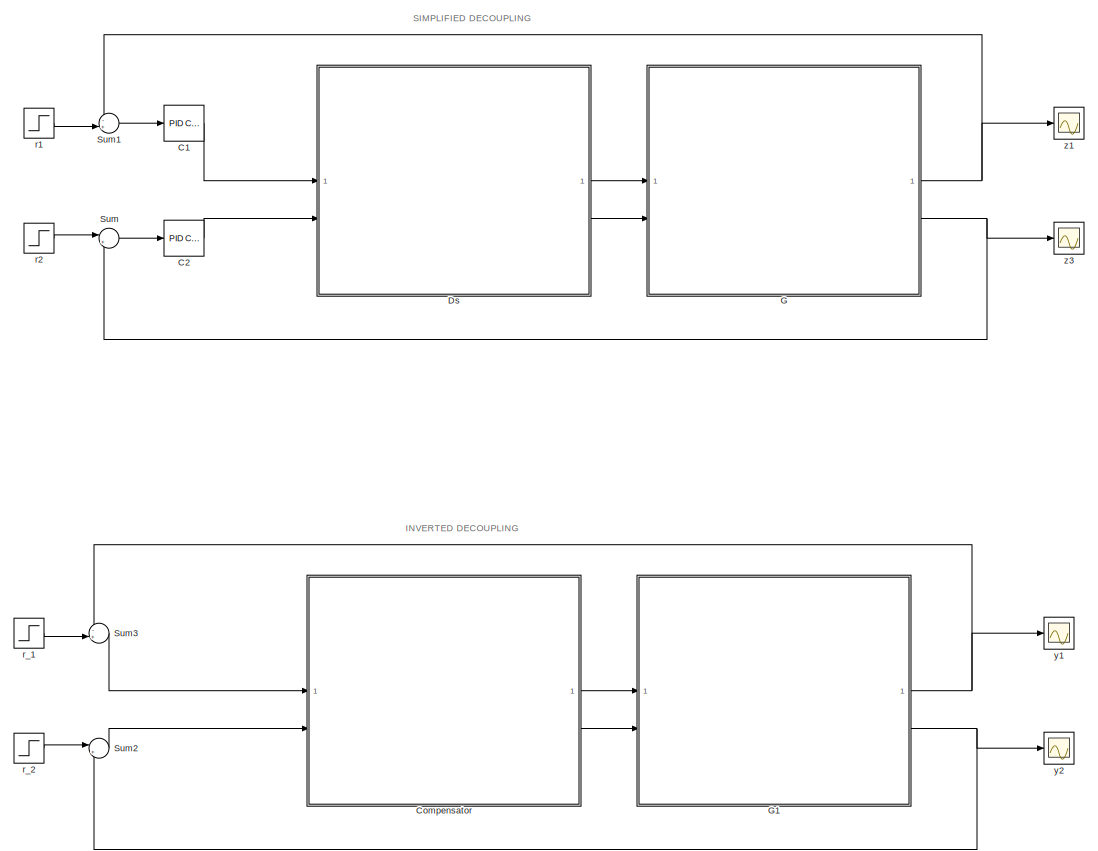
[diagram: root canvas - part 1/2, full width, top band]
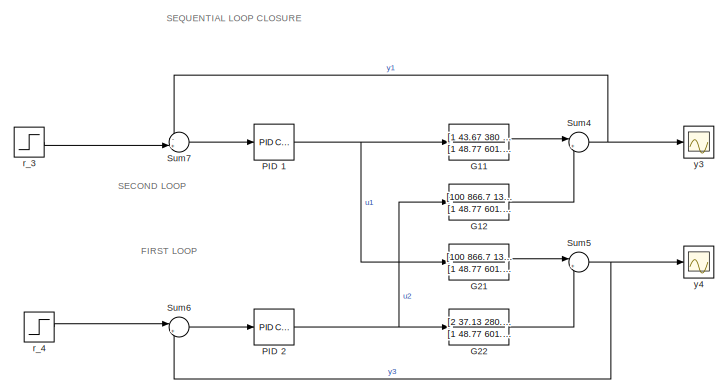
[diagram: root canvas - part 2/2, bottom center region]
MODEL slx_95e938a37284
KIND model
CONFIG AbsTol = auto
CONFIG EnableMultiTasking = off
CONFIG FixedStep = auto
CONFIG MaxStep = auto
CONFIG MinStep = auto
CONFIG RelTol = 1e-3
CONFIG SampleTimeConstraint = Unconstrained
CONFIG SolverName = VariableStepAuto
CONFIG StartTime = 0.0
CONFIG StopTime = 10.0
BLOCK [Reference] C1  REF=slpidlib/PID Controller
  LibrarySourceBlock = simulink/Continuous/PID Controller
  SourceBlock = slpidlib/PID Controller
  SourceType = PID 1dof
BLOCK [Reference] C2  REF=slpidlib/PID Controller
  LibrarySourceBlock = simulink/Continuous/PID Controller
  SourceBlock = slpidlib/PID Controller
  SourceType = PID 1dof
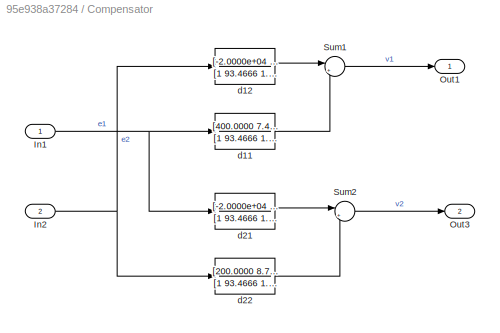
BLOCK [SubSystem] Compensator
BLOCK [Inport] Compensator/In1
  IconDisplay = Signal name
BLOCK [Inport] Compensator/In2
  IconDisplay = Signal name
  Port = 2
BLOCK [Outport] Compensator/Out1
  IconDisplay = Signal name
BLOCK [Outport] Compensator/Out3
  IconDisplay = Signal name
  Port = 2
BLOCK [Sum] Compensator/Sum1
  Inputs = |++
BLOCK [Sum] Compensator/Sum2
  Inputs = |++
BLOCK [TransferFcn] Compensator/d11
  Denominator = [1 93.4666 1.1507e+03 5.8666e+03 0]
  Numerator = [400.0000 7.4266e+03 5.6138e+04 2.0373e+05 4.1333e+05]
BLOCK [TransferFcn] Compensator/d12
  Denominator = [1 93.4666 1.1507e+03 5.8666e+03 0]
  Numerator = [-2.0000e+04 -1.7333e+05 -2.6667e+05]
BLOCK [TransferFcn] Compensator/d21
  Denominator = [1 93.4666 1.1507e+03 5.8666e+03 0]
  Numerator = [-2.0000e+04 -1.7333e+05 -2.6667e+05]
BLOCK [TransferFcn] Compensator/d22
  Denominator = [1 93.4666 1.1507e+03 5.8666e+03 0]
  Numerator = [200.0000 8.7333e+03 7.6005e+04 1.8160e+05 2.6667e+05]
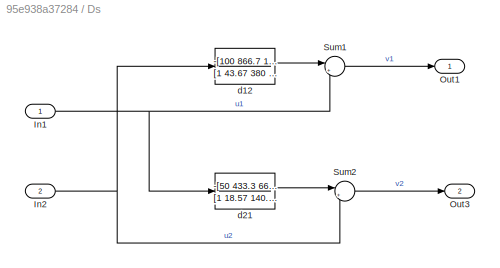
BLOCK [SubSystem] Ds
BLOCK [Inport] Ds/In1
  IconDisplay = Signal name
BLOCK [Inport] Ds/In2
  IconDisplay = Signal name
  Port = 2
BLOCK [Outport] Ds/Out1
  IconDisplay = Signal name
BLOCK [Outport] Ds/Out3
  IconDisplay = Signal name
  Port = 2
BLOCK [Sum] Ds/Sum1
  Inputs = |++
BLOCK [Sum] Ds/Sum2
  Inputs = |++
BLOCK [TransferFcn] Ds/d12
  Denominator = [1 43.67 380 908 1333]
  Numerator = -[100 866.7 1333]
BLOCK [TransferFcn] Ds/d21
  Denominator = [1 18.57 140.3 509.3 1033]
  Numerator = -[50 433.3 666.7]
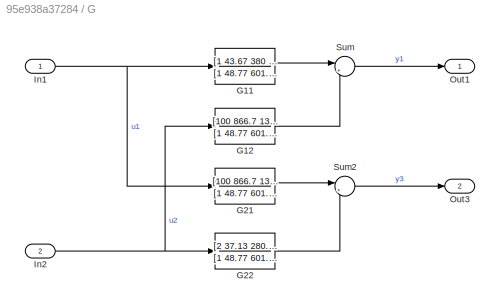
BLOCK [SubSystem] G
BLOCK [TransferFcn] G/G11
  Denominator = [1 48.77 601.1 2931 6251 5073 6667]
  Numerator = [1 43.67 380 908 1333]
BLOCK [TransferFcn] G/G12
  Denominator = [1 48.77 601.1 2931 6251 5073 6667]
  Numerator = [100 866.7 1333]
BLOCK [TransferFcn] G/G21
  Denominator = [1 48.77 601.1 2931 6251 5073 6667]
  Numerator = [100 866.7 1333]
BLOCK [TransferFcn] G/G22
  Denominator = [1 48.77 601.1 2931 6251 5073 6667]
  Numerator = [2 37.13 280.7 1019 2067]
BLOCK [Inport] G/In1
  IconDisplay = Signal name
BLOCK [Inport] G/In2
  IconDisplay = Signal name
  Port = 2
BLOCK [Outport] G/Out1
  IconDisplay = Signal name
BLOCK [Outport] G/Out3
  IconDisplay = Signal name
  Port = 2
BLOCK [Sum] G/Sum
  Inputs = |++
BLOCK [Sum] G/Sum2
  Inputs = |++
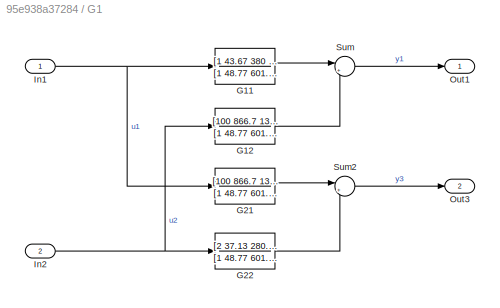
BLOCK [SubSystem] G1
BLOCK [TransferFcn] G1/G11
  Denominator = [1 48.77 601.1 2931 6251 5073 6667]
  Numerator = [1 43.67 380 908 1333]
BLOCK [TransferFcn] G1/G12
  Denominator = [1 48.77 601.1 2931 6251 5073 6667]
  Numerator = [100 866.7 1333]
BLOCK [TransferFcn] G1/G21
  Denominator = [1 48.77 601.1 2931 6251 5073 6667]
  Numerator = [100 866.7 1333]
BLOCK [TransferFcn] G1/G22
  Denominator = [1 48.77 601.1 2931 6251 5073 6667]
  Numerator = [2 37.13 280.7 1019 2067]
BLOCK [Inport] G1/In1
  IconDisplay = Signal name
BLOCK [Inport] G1/In2
  IconDisplay = Signal name
  Port = 2
BLOCK [Outport] G1/Out1
  IconDisplay = Signal name
BLOCK [Outport] G1/Out3
  IconDisplay = Signal name
  Port = 2
BLOCK [Sum] G1/Sum
  Inputs = |++
BLOCK [Sum] G1/Sum2
  Inputs = |++
BLOCK [TransferFcn] G11
  Denominator = [1 48.77 601.1 2931 6251 5073 6667]
  Numerator = [1 43.67 380 908 1333]
BLOCK [TransferFcn] G12
  Denominator = [1 48.77 601.1 2931 6251 5073 6667]
  Numerator = [100 866.7 1333]
BLOCK [TransferFcn] G21
  Denominator = [1 48.77 601.1 2931 6251 5073 6667]
  Numerator = [100 866.7 1333]
BLOCK [TransferFcn] G22
  Denominator = [1 48.77 601.1 2931 6251 5073 6667]
  Numerator = [2 37.13 280.7 1019 2067]
BLOCK [Reference] PID 1  REF=slpidlib/PID Controller
  LibrarySourceBlock = simulink/Continuous/PID Controller
  SourceBlock = slpidlib/PID Controller
  SourceType = PID 1dof
BLOCK [Reference] PID 2  REF=slpidlib/PID Controller
  LibrarySourceBlock = simulink/Continuous/PID Controller
  SourceBlock = slpidlib/PID Controller
  SourceType = PID 1dof
BLOCK [Sum] Sum
  Inputs = |+-
BLOCK [Sum] Sum1
  Inputs = -+|
BLOCK [Sum] Sum2
  Inputs = |+-
BLOCK [Sum] Sum3
  Inputs = -+|
BLOCK [Sum] Sum4
  Inputs = |++
BLOCK [Sum] Sum5
  Inputs = |++
BLOCK [Sum] Sum6
  Inputs = |+-
BLOCK [Sum] Sum7
  Inputs = -+|
BLOCK [Step] r1
  After = 0.5
  SampleTime = 0
  Time = 0
BLOCK [Step] r2
  After = 1.5
  SampleTime = 0
  Time = 0
BLOCK [Step] r_1
  After = 0.5
  SampleTime = 0
  Time = 0
BLOCK [Step] r_2
  After = 1.5
  SampleTime = 0
  Time = 0
BLOCK [Step] r_3
  After = 0.5
  SampleTime = 0
  Time = 0
BLOCK [Step] r_4
  After = 1.5
  SampleTime = 0
  Time = 0
BLOCK [Scope] y1
  Floating = off
  NumInputPorts = 1
  ScopeSpecificationString = Simulink.scopes.TimeScopeBlockCfg('CurrentConfiguration', extmgr.ConfigurationSet(extmgr.Configuration('Core','General UI',true),extmgr.Configuration('Core','Source UI',true),extmgr.Configuration('Sources','WiredSimulink',true,'DataLoggingVariableName','ScopeData1'),extmgr.Configuration('Visuals','Time Domain',true,'SerializedDisplays',{struct('MinYLimReal','-0.0625','MaxYLimReal','0.56251','YLabe...<+1451ch>
BLOCK [Scope] y2
  Floating = off
  NumInputPorts = 1
  ScopeSpecificationString = Simulink.scopes.TimeScopeBlockCfg('CurrentConfiguration', extmgr.ConfigurationSet(extmgr.Configuration('Core','General UI',true),extmgr.Configuration('Core','Source UI',true),extmgr.Configuration('Sources','WiredSimulink',true,'DataLoggingVariableName','ScopeData2'),extmgr.Configuration('Visuals','Time Domain',true,'SerializedDisplays',{struct('MinYLimReal','-0.19578','MaxYLimReal','1.76202','YLab...<+1452ch>
BLOCK [Scope] y3
  Floating = off
  NumInputPorts = 1
  ScopeSpecificationString = Simulink.scopes.TimeScopeBlockCfg('CurrentConfiguration', extmgr.ConfigurationSet(extmgr.Configuration('Core','General UI',true),extmgr.Configuration('Core','Source UI',true),extmgr.Configuration('Sources','WiredSimulink',true,'DataLoggingVariableName','ScopeData3'),extmgr.Configuration('Visuals','Time Domain',true,'SerializedDisplays',{struct('MinYLimReal','-0.12137','MaxYLimReal','1.09233','YLab...<+1450ch>
BLOCK [Scope] y4
  Floating = off
  NumInputPorts = 1
  ScopeSpecificationString = Simulink.scopes.TimeScopeBlockCfg('CurrentConfiguration', extmgr.ConfigurationSet(extmgr.Configuration('Core','General UI',true),extmgr.Configuration('Core','Source UI',true),extmgr.Configuration('Sources','WiredSimulink',true,'DataLoggingVariableName','ScopeData4'),extmgr.Configuration('Visuals','Time Domain',true,'SerializedDisplays',{struct('MinYLimReal','-0.18588','MaxYLimReal','1.67292','YLab...<+1450ch>
BLOCK [Scope] z1
  Floating = off
  NumInputPorts = 1
  ScopeSpecificationString = Simulink.scopes.TimeScopeBlockCfg('CurrentConfiguration', extmgr.ConfigurationSet(extmgr.Configuration('Core','General UI',true),extmgr.Configuration('Core','Source UI',true),extmgr.Configuration('Sources','WiredSimulink',true),extmgr.Configuration('Visuals','Time Domain',true,'SerializedDisplays',{struct('MinYLimReal','-0.0651','MaxYLimReal','0.58587','YLabelReal','','MinYLimMag','0.00000','MaxYL...<+1411ch>
BLOCK [Scope] z3
  Floating = off
  NumInputPorts = 1
  ScopeSpecificationString = Simulink.scopes.TimeScopeBlockCfg('CurrentConfiguration', extmgr.ConfigurationSet(extmgr.Configuration('Core','General UI',true),extmgr.Configuration('Core','Source UI',true),extmgr.Configuration('Sources','WiredSimulink',true,'DataLoggingVariableName','ScopeData1'),extmgr.Configuration('Visuals','Time Domain',true,'SerializedDisplays',{struct('MinYLimReal','-0.19578','MaxYLimReal','1.76202','YLab...<+1452ch>
ANNOTATION (root): FIRST LOOP
ANNOTATION (root): INVERTED DECOUPLING
ANNOTATION (root): SECOND LOOP
ANNOTATION (root): SEQUENTIAL LOOP CLOSURE
ANNOTATION (root): SIMPLIFIED DECOUPLING
LINE C1:1 -> Ds:1
LINE C2:1 -> Ds:2
NET Compensator/In1:1 -> Compensator/d11:1, Compensator/d21:1
NET Compensator/In2:1 -> Compensator/d12:1, Compensator/d22:1
LINE Compensator/Sum1:1 -> Compensator/Out1:1
LINE Compensator/Sum2:1 -> Compensator/Out3:1
LINE Compensator/d11:1 -> Compensator/Sum1:2
LINE Compensator/d12:1 -> Compensator/Sum1:1
LINE Compensator/d21:1 -> Compensator/Sum2:1
LINE Compensator/d22:1 -> Compensator/Sum2:2
LINE Compensator:1 -> G1:1
LINE Compensator:2 -> G1:2
NET Ds/In1:1 -> Ds/Sum1:2, Ds/d21:1
NET Ds/In2:1 -> Ds/Sum2:2, Ds/d12:1
LINE Ds/Sum1:1 -> Ds/Out1:1
LINE Ds/Sum2:1 -> Ds/Out3:1
LINE Ds/d12:1 -> Ds/Sum1:1
LINE Ds/d21:1 -> Ds/Sum2:1
LINE Ds:1 -> G:1
LINE Ds:2 -> G:2
LINE G/G11:1 -> G/Sum:1
LINE G/G12:1 -> G/Sum:2
LINE G/G21:1 -> G/Sum2:1
LINE G/G22:1 -> G/Sum2:2
NET G/In1:1 -> G/G11:1, G/G21:1
NET G/In2:1 -> G/G12:1, G/G22:1
LINE G/Sum2:1 -> G/Out3:1
LINE G/Sum:1 -> G/Out1:1
LINE G1/G11:1 -> G1/Sum:1
LINE G1/G12:1 -> G1/Sum:2
LINE G1/G21:1 -> G1/Sum2:1
LINE G1/G22:1 -> G1/Sum2:2
NET G1/In1:1 -> G1/G11:1, G1/G21:1
NET G1/In2:1 -> G1/G12:1, G1/G22:1
LINE G1/Sum2:1 -> G1/Out3:1
LINE G1/Sum:1 -> G1/Out1:1
LINE G11:1 -> Sum4:1
LINE G12:1 -> Sum4:2
NET G1:1 -> Sum3:1, y1:1
NET G1:2 -> Sum2:2, y2:1
LINE G21:1 -> Sum5:1
LINE G22:1 -> Sum5:2
NET G:1 -> Sum1:1, z1:1
NET G:2 -> Sum:2, z3:1
NET PID 1:1 -> G11:1, G21:1
NET PID 2:1 -> G12:1, G22:1
LINE Sum1:1 -> C1:1
LINE Sum2:1 -> Compensator:2
LINE Sum3:1 -> Compensator:1
NET Sum4:1 -> Sum7:1, y3:1
NET Sum5:1 -> Sum6:2, y4:1
LINE Sum6:1 -> PID 2:1
LINE Sum7:1 -> PID 1:1
LINE Sum:1 -> C2:1
LINE r1:1 -> Sum1:2
LINE r2:1 -> Sum:1
LINE r_1:1 -> Sum3:2
LINE r_2:1 -> Sum2:1
LINE r_3:1 -> Sum7:2
LINE r_4:1 -> Sum6:1
note: NET lines group one-source signal fan-out (src -> all destinations, sorted); 1:1 wires keep LINE
